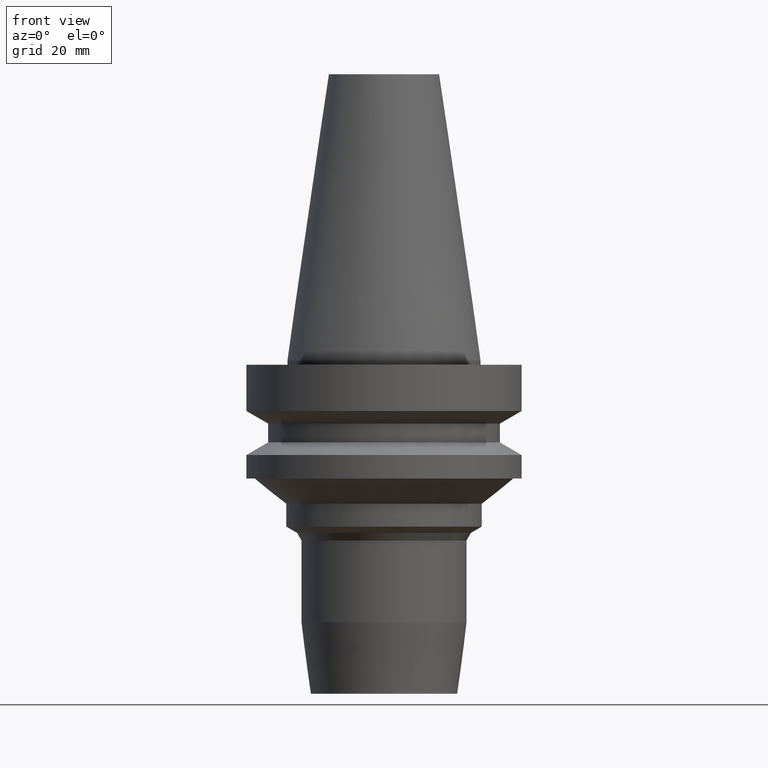
[diagram: clean part render]
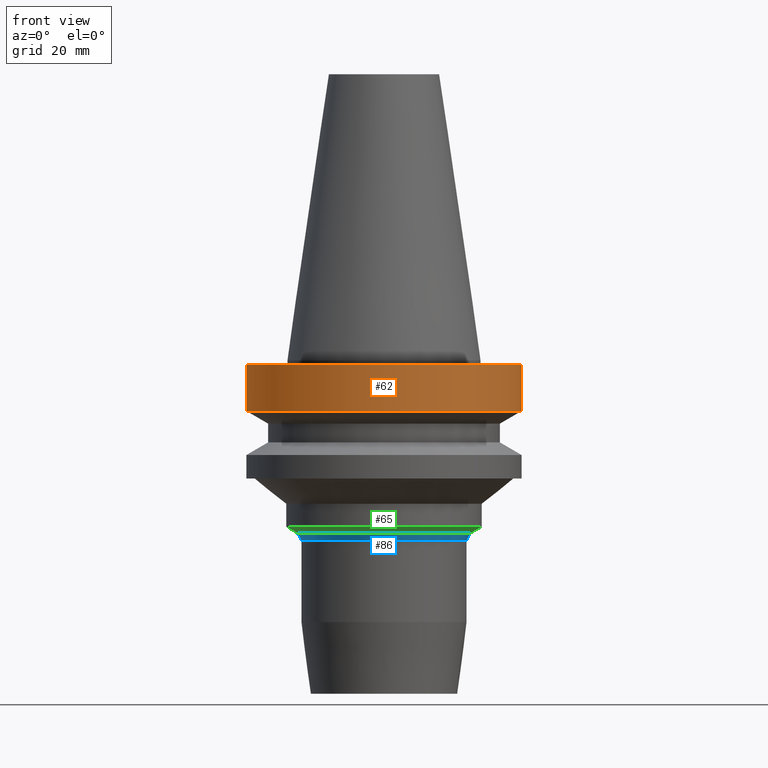
[diagram: same view with three faces highlighted in distinct colors, each labeled with its STEP entity id]
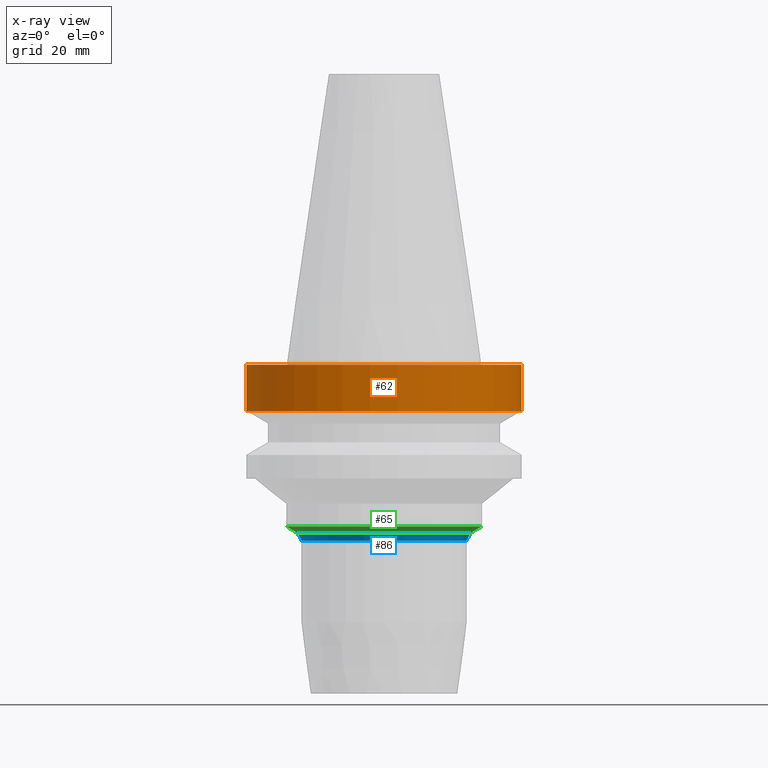
[diagram: x-ray of the same camera — body ghosted, the three highlighted faces saturated]
A machine part, front view with three faces highlighted in distinct colors.
The next image is the same camera in x-ray (body ghosted, the three faces saturated) — at least one of them is partly hidden behind the body in this view.
Their STEP definitions:

[orange] entity #62 — the highlighted cylindrical surface (bore or boss wall) has radius 31.5 mm, axis along (0, -0, -1).
#62=ADVANCED_FACE('Unnamed[1]',(#166,#167),#168,.T.);
#75=EDGE_CURVE('Unnamed[1]',#188,#188,#189,.T.);
#132=EDGE_CURVE('Unnamed[1]',#277,#277,#278,.T.);
#166=FACE_BOUND('',#308,.T.);
#167=FACE_BOUND('',#309,.T.);
#168=CYLINDRICAL_SURFACE('',#310,31.5);
#188=VERTEX_POINT('',#335);
#189=CIRCLE('',#336,31.4999999999997);
#277=VERTEX_POINT('',#447);
#278=CIRCLE('',#448,31.5000000000004);
#308=EDGE_LOOP('',(#474));
#309=EDGE_LOOP('',(#475));
#310=AXIS2_PLACEMENT_3D('',#476,#477,#478);
#335=CARTESIAN_POINT('',(6.12323399573568E-017,31.4999999999997,-0.999999999999825));
#336=AXIS2_PLACEMENT_3D('',#500,#501,#502);
#447=CARTESIAN_POINT('',(7.08182973902924E-016,31.5000000000004,-11.5655056526664));
#448=AXIS2_PLACEMENT_3D('',#600,#601,#602);
#474=ORIENTED_EDGE('',*,*,#132,.F.);
#475=ORIENTED_EDGE('',*,*,#75,.T.);
#476=CARTESIAN_POINT('',(3.84707656930139E-016,2.84402033448639E-014,-6.28275282633307));
#477=DIRECTION('',(6.12323399573677E-017,-6.70422349373967E-016,-1.0));
#478=DIRECTION('',(3.62243764811148E-032,1.0,-6.70422349373967E-016));
#500=CARTESIAN_POINT('',(6.12323399573555E-017,3.19818789058562E-014,-0.999999999999801));
#501=DIRECTION('',(6.12323399573677E-017,-6.70422349373967E-016,-1.0));
#502=DIRECTION('',(3.62243764811148E-032,1.0,-6.70422349373967E-016));
#600=CARTESIAN_POINT('',(7.08182973902922E-016,2.48985277838716E-014,-11.5655056526663));
#601=DIRECTION('',(6.12323399573677E-017,-6.70422349373967E-016,-1.0));
#602=DIRECTION('',(3.62243764811148E-032,1.0,-6.70422349373967E-016));

[blue] entity #86 — the highlighted conical surface has half-angle 30 deg.
#86=ADVANCED_FACE('Unnamed[1]',(#204,#205),#206,.T.);
#134=EDGE_CURVE('Unnamed[1]',#280,#280,#281,.T.);
#139=EDGE_CURVE('Unnamed[1]',#288,#288,#289,.T.);
#204=FACE_BOUND('',#356,.T.);
#205=FACE_BOUND('',#357,.T.);
#206=CONICAL_SURFACE('',#358,19.5000000000007,0.523598775600471);
#280=VERTEX_POINT('',#451);
#281=CIRCLE('',#452,20.0000000000032);
#288=VERTEX_POINT('',#461);
#289=CIRCLE('',#462,18.9999999999981);
#356=EDGE_LOOP('',(#516));
#357=EDGE_LOOP('',(#517));
#358=AXIS2_PLACEMENT_3D('',#518,#519,#520);
#451=CARTESIAN_POINT('',(2.41521018826952E-015,20.0000000000032,-39.4433756729057));
#452=AXIS2_PLACEMENT_3D('',#603,#604,#605);
#461=CARTESIAN_POINT('',(2.52126771214201E-015,18.9999999999982,-41.1754264804745));
#462=AXIS2_PLACEMENT_3D('',#612,#613,#614);
#516=ORIENTED_EDGE('',*,*,#139,.F.);
#517=ORIENTED_EDGE('',*,*,#134,.T.);
#518=CARTESIAN_POINT('',(2.46823895020577E-015,5.62797788353798E-015,-40.3094010766901));
#519=DIRECTION('',(-6.12323399573677E-017,6.70422349373967E-016,1.0));
#520=DIRECTION('',(3.62243764811148E-032,1.0,-6.70422349373967E-016));
#603=CARTESIAN_POINT('',(2.41521018826952E-015,6.20858066936068E-015,-39.4433756729057));
#604=DIRECTION('',(6.12323399573676E-017,-6.70422349373967E-016,-1.0));
#605=DIRECTION('',(3.62243764811148E-032,1.0,-6.70422349373967E-016));
#612=CARTESIAN_POINT('',(2.52126771214201E-015,5.04737509771528E-015,-41.1754264804745));
#613=DIRECTION('',(6.12323399573677E-017,-6.70422349373967E-016,-1.0));
#614=DIRECTION('',(3.62243764811148E-032,1.0,-6.70422349373967E-016));

[green] entity #65 — the highlighted conical surface has half-angle 60 deg.
#65=ADVANCED_FACE('Unnamed[1]',(#171,#172),#173,.T.);
#107=EDGE_CURVE('Unnamed[1]',#238,#238,#239,.T.);
#134=EDGE_CURVE('Unnamed[1]',#280,#280,#281,.T.);
#171=FACE_BOUND('',#314,.T.);
#172=FACE_BOUND('',#315,.T.);
#173=CONICAL_SURFACE('',#316,21.2500000000002,1.0471975511966);
#238=VERTEX_POINT('',#398);
#239=CIRCLE('',#399,22.4999999999973);
#280=VERTEX_POINT('',#451);
#281=CIRCLE('',#452,20.0000000000032);
#314=EDGE_LOOP('',(#480));
#315=EDGE_LOOP('',(#481));
#316=AXIS2_PLACEMENT_3D('',#482,#483,#484);
#398=CARTESIAN_POINT('',(2.32682891837599E-015,22.4999999999973,-37.999999999935));
#399=AXIS2_PLACEMENT_3D('',#556,#557,#558);
#451=CARTESIAN_POINT('',(2.41521018826952E-015,20.0000000000032,-39.4433756729057));
#452=AXIS2_PLACEMENT_3D('',#603,#604,#605);
#480=ORIENTED_EDGE('',*,*,#134,.F.);
#481=ORIENTED_EDGE('',*,*,#107,.T.);
#482=CARTESIAN_POINT('',(2.37101955332276E-015,6.69241632421178E-015,-38.7216878364203));
#483=DIRECTION('',(-6.12323399573677E-017,6.70422349373967E-016,1.0));
#484=DIRECTION('',(3.62243764811148E-032,1.0,-6.70422349373967E-016));
#556=CARTESIAN_POINT('',(2.32682891837599E-015,7.1762519790629E-015,-37.999999999935));
#557=DIRECTION('',(6.12323399573677E-017,-6.70422349373967E-016,-1.0));
#558=DIRECTION('',(3.62243764811148E-032,1.0,-6.70422349373967E-016));
#603=CARTESIAN_POINT('',(2.41521018826952E-015,6.20858066936068E-015,-39.4433756729057));
#604=DIRECTION('',(6.12323399573676E-017,-6.70422349373967E-016,-1.0));
#605=DIRECTION('',(3.62243764811148E-032,1.0,-6.70422349373967E-016));